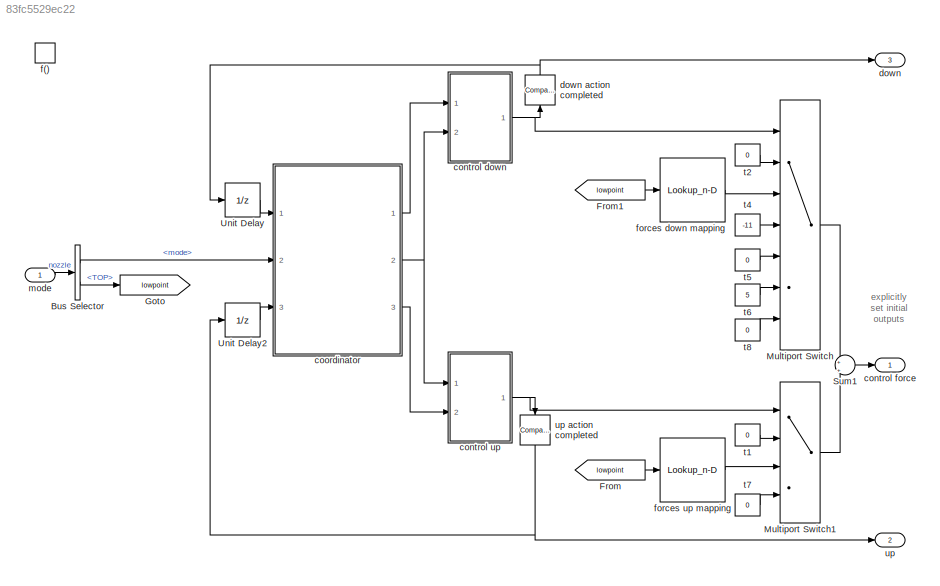
MODEL slx_83fc5529ec22
KIND model
BLOCK [BusSelector] Bus Selector
  OutputSignals = mode,TOP
  Ports = [1, 2]
BLOCK [From] From
  GotoTag = lowpoint
BLOCK [From] From1
  GotoTag = lowpoint
BLOCK [Goto] Goto
  GotoTag = lowpoint
BLOCK [MultiPortSwitch] Multiport Switch
  DataPortOrder = Zero-based contiguous
  InputSameDT = off
  Inputs = 6
  Ports = [7, 1]
  SaturateOnIntegerOverflow = off
BLOCK [MultiPortSwitch] Multiport Switch1
  DataPortOrder = Zero-based contiguous
  InputSameDT = off
  Ports = [4, 1]
  SaturateOnIntegerOverflow = off
BLOCK [Sum] Sum1
  IconShape = round
  InputSameDT = off
  Inputs = +|+
  OutDataTypeStr = Inherit: Inherit via internal rule
  Ports = [2, 1]
  SaturateOnIntegerOverflow = off
BLOCK [UnitDelay] Unit Delay
  InputProcessing = Elements as channels (sample based)
  SampleTime = -1
BLOCK [UnitDelay] Unit Delay2
  InputProcessing = Elements as channels (sample based)
  SampleTime = -1
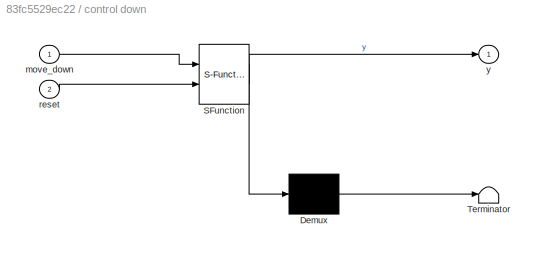
BLOCK [SubSystem] control down
  ErrorFcn = Stateflow.Translate.translate
  FunctionWithSeparateData = off
  MaskHideContents = off
  MinAlgLoopOccurrences = off
  Opaque = off
  PermitHierarchicalResolution = ExplicitOnly
  Ports = [2, 1]
  PropExecContextOutsideSubsystem = off
  RTWSystemCode = Auto
  RequestExecContextInheritance = off
  SFBlockType = Chart
  TreatAsAtomicUnit = on
BLOCK [Demux] control down/ Demux 
  Outputs = 1
  Ports = [1, 1]
BLOCK [S-Function] control down/ SFunction 
  EnableBusSupport = on
  FunctionName = sf_sfun
  PortCounts = [2 2]
  Ports = [2, 2]
  Tag = Stateflow S-Function cps_nozzle_control_v2 2
BLOCK [Terminator] control down/ Terminator 
BLOCK [Inport] control down/move_down
  IconDisplay = Port number
BLOCK [Inport] control down/reset
  IconDisplay = Port number
  Port = 2
BLOCK [Outport] control down/y
  IconDisplay = Port number
BLOCK [Outport] control force
  IconDisplay = Port number
  InitialOutput = 0
  OutDataTypeStr = double
  PortDimensions = 1
  SamplingMode = Sample based
  SignalType = real
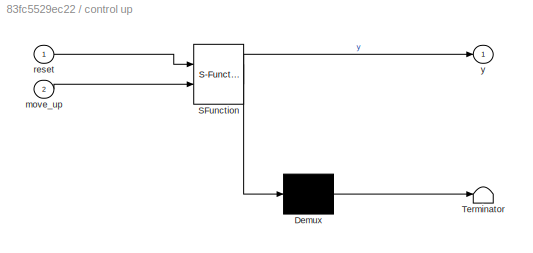
BLOCK [SubSystem] control up
  ErrorFcn = Stateflow.Translate.translate
  FunctionWithSeparateData = off
  MaskHideContents = off
  MinAlgLoopOccurrences = off
  Opaque = off
  PermitHierarchicalResolution = ExplicitOnly
  Ports = [2, 1]
  PropExecContextOutsideSubsystem = off
  RTWSystemCode = Auto
  RequestExecContextInheritance = off
  SFBlockType = Chart
  TreatAsAtomicUnit = on
BLOCK [Demux] control up/ Demux 
  Outputs = 1
  Ports = [1, 1]
BLOCK [S-Function] control up/ SFunction 
  EnableBusSupport = on
  FunctionName = sf_sfun
  PortCounts = [2 2]
  Ports = [2, 2]
  Tag = Stateflow S-Function cps_nozzle_control_v2 3
BLOCK [Terminator] control up/ Terminator 
BLOCK [Inport] control up/move_up
  IconDisplay = Port number
  Port = 2
BLOCK [Inport] control up/reset
  IconDisplay = Port number
BLOCK [Outport] control up/y
  IconDisplay = Port number
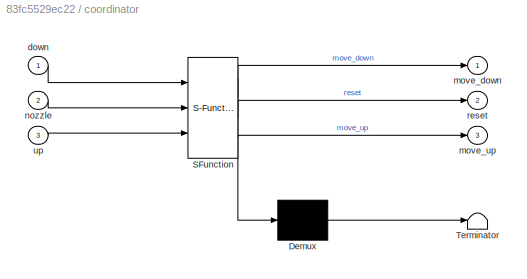
BLOCK [SubSystem] coordinator
  ErrorFcn = Stateflow.Translate.translate
  FunctionWithSeparateData = off
  MaskHideContents = off
  MinAlgLoopOccurrences = off
  Opaque = off
  PermitHierarchicalResolution = ExplicitOnly
  Ports = [3, 3]
  PropExecContextOutsideSubsystem = off
  RTWSystemCode = Auto
  RequestExecContextInheritance = off
  SFBlockType = Chart
  TreatAsAtomicUnit = on
BLOCK [Demux] coordinator/ Demux 
  Outputs = 1
  Ports = [1, 1]
BLOCK [S-Function] coordinator/ SFunction 
  EnableBusSupport = on
  FunctionName = sf_sfun
  PortCounts = [3 4]
  Ports = [3, 4]
  Tag = Stateflow S-Function cps_nozzle_control_v2 1
BLOCK [Terminator] coordinator/ Terminator 
BLOCK [Inport] coordinator/down
  IconDisplay = Port number
BLOCK [Outport] coordinator/move_down
  IconDisplay = Port number
BLOCK [Outport] coordinator/move_up
  IconDisplay = Port number
  Port = 3
BLOCK [Inport] coordinator/nozzle
  IconDisplay = Port number
  Port = 2
BLOCK [Outport] coordinator/reset
  IconDisplay = Port number
  Port = 2
BLOCK [Inport] coordinator/up
  IconDisplay = Port number
  Port = 3
BLOCK [Outport] down
  IconDisplay = Port number
  InitialOutput = 0
  OutDataTypeStr = uint8
  Port = 3
  PortDimensions = 1
  SamplingMode = Sample based
  SignalType = real
BLOCK [Reference] down action completed  REF=simulink/Logic and Bit
Operations/Compare
To Constant
  OutDataTypeStr = uint8
  Ports = [1, 1]
  SourceBlock = simulink/Logic and Bit\nOperations/Compare\nTo Constant
  SourceType = Compare To Constant
  ZeroCross = on
  const = 5
  relop = ==
BLOCK [TriggerPort] f()
  PortDimensions = 1
  Ports = []
  StatesWhenEnabling = held
  TriggerType = function-call
BLOCK [Lookup_n-D] forces down mapping
  BreakpointsForDimension1 = [0:2]
  NumberOfTableDimensions = 1
  Ports = [1, 1]
  RndMeth = Simplest
  Table = [-100 -80 -60]
BLOCK [Lookup_n-D] forces up mapping
  BreakpointsForDimension1 = [0:2]
  NumberOfTableDimensions = 1
  Ports = [1, 1]
  RndMeth = Simplest
  Table = [160 105 80]
BLOCK [Inport] mode
  IconDisplay = Port number
  OutDataTypeStr = Bus:slBusNozzleOps
  PortDimensions = 1
  SamplingMode = Sample based
  SignalType = real
BLOCK [Constant] t1
  OutDataTypeStr = Inherit: Inherit via back propagation
  Value = 0
BLOCK [Constant] t2
  OutDataTypeStr = Inherit: Inherit via back propagation
  Value = 0
BLOCK [Constant] t4
  OutDataTypeStr = Inherit: Inherit via back propagation
  Value = -11
BLOCK [Constant] t5
  OutDataTypeStr = Inherit: Inherit via back propagation
  Value = 0
BLOCK [Constant] t6
  OutDataTypeStr = Inherit: Inherit via back propagation
  Value = 5
BLOCK [Constant] t7
  OutDataTypeStr = Inherit: Inherit via back propagation
  Value = 0
BLOCK [Constant] t8
  OutDataTypeStr = Inherit: Inherit via back propagation
  Value = 0
BLOCK [Outport] up
  IconDisplay = Port number
  InitialOutput = 0
  OutDataTypeStr = uint8
  Port = 2
  PortDimensions = 1
  SamplingMode = Sample based
  SignalType = real
BLOCK [Reference] up action completed  REF=simulink/Logic and Bit
Operations/Compare
To Constant
  OutDataTypeStr = uint8
  Ports = [1, 1]
  SourceBlock = simulink/Logic and Bit\nOperations/Compare\nTo Constant
  SourceType = Compare To Constant
  ZeroCross = on
  const = 2
  relop = ==
ANNOTATION (root): explicitly set initial outputs
LINE Bus Selector:1 -> coordinator:2
LINE Bus Selector:2 -> Goto:1
LINE From1:1 -> forces down mapping:1
LINE From:1 -> forces up mapping:1
LINE Multiport Switch1:1 -> Sum1:2
LINE Multiport Switch:1 -> Sum1:1
LINE Sum1:1 -> control force:1
LINE Unit Delay2:1 -> coordinator:3
LINE Unit Delay:1 -> coordinator:1
NET control down:1 -> Multiport Switch:1, down action completed:1
NET control up:1 -> Multiport Switch1:1, up action completed:1
LINE coordinator:1 -> control down:1
NET coordinator:2 -> control down:2, control up:1
LINE coordinator:3 -> control up:2
NET down action completed:1 -> Unit Delay:1, down:1
LINE forces down mapping:1 -> Multiport Switch:3
LINE forces up mapping:1 -> Multiport Switch1:3
LINE mode:1 -> Bus Selector:1
LINE t1:1 -> Multiport Switch1:2
LINE t2:1 -> Multiport Switch:2
LINE t4:1 -> Multiport Switch:4
LINE t5:1 -> Multiport Switch:5
LINE t6:1 -> Multiport Switch:6
LINE t7:1 -> Multiport Switch1:4
LINE t8:1 -> Multiport Switch:7
NET up action completed:1 -> Unit Delay2:1, up:1
note: NET lines group one-source signal fan-out (src -> all destinations, sorted); 1:1 wires keep LINE
